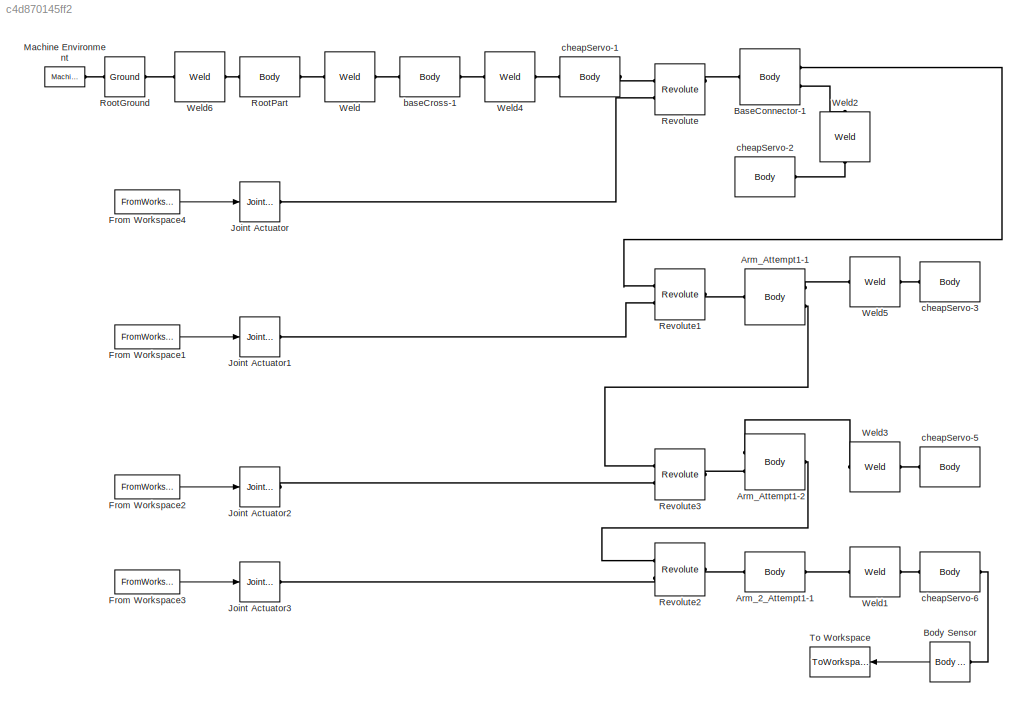
MODEL slx_c4d870145ff2
KIND model
BLOCK [Reference] Arm_2_Attempt1-1  REF=mblibv1/Bodies/Body
  AttachedToCS = CS1
  BodyColor = [0.79216 0.81961 0.93333]
  BodyColorSelMode = COLORPALETTE
  CG = Right$CG$[0.0802063 0.117359 0.26392]$WORLD$WORLD$m$[0 0 -1;0 1 0;1 0 0]$3x3 Transform$rad$WORLD$false$Arm_2_Attempt1-1::CG(AUTOGEN)
  CGPos = [0.0802063 0.117359 0.26392]
  CGRot = [0 0 -1;0 1 0;1 0 0]
  CS0Pos = []
  CS0Rot = []
  CS10Pos = []
  CS10Rot = []
  CS11Pos = []
  CS11Rot = []
  CS12Pos = []
  CS12Rot = []
  CS13Pos = []
  CS13Rot = []
  CS14Pos = []
  CS14Rot = []
  CS15Pos = []
  CS15Rot = []
  CS16Pos = []
  CS16Rot = []
  CS17Pos = []
  CS17Rot = []
  CS18Pos = []
  CS18Rot = []
  CS19Pos = []
  CS19Rot = []
  CS1Pos = [0.0387132 0.111386 0.303805]
  CS1Rot = [0 0 -1;0 1 0;1 0 0]
  CS20Pos = []
  CS20Rot = []
  CS2Pos = [0.0387132 0.111386 0.303805]
  CS2Rot = [1 0 0;0 1 0;0 0 1]
  CS3Pos = [0.0587132 0.117456 0.279]
  CS3Rot = [1 0 0;0 1 0;0 0 1]
  CS4Pos = []
  CS4Rot = []
  CS5Pos = []
  CS5Rot = []
  CS6Pos = []
  CS6Rot = []
  CS7Pos = []
  CS7Rot = []
  CS8Pos = []
  CS8Rot = []
  CS9Pos = []
  CS9Rot = []
  ClassName = Body
  Density = 1
  DensityUnits = kg/m^3
  DensityUse = false
  DialogClass = MechanicalBodyBlock
  GraphicsFileName = <userpath>\Dropbox\RBE501\RBE501_Arm_Simulink\Arm_new - Arm_2_Attempt1-1.STL
  GraphicsMode = GFXFILE
  Inertia = [1.93456e-06,-1.28538e-09,1.03955e-07;-1.28538e-09,2.88684e-06,-1.81312e-09;1.03955e-07,-1.81312e-09,1.07e-06]
  InertiaUnits = kg*m^2
  LConnTagsString = CS3
  Mass = 0.00482788
  MassUnits = kg
  PMImportedID = Arm_2_Attempt1-1
  Ports = [0, 0, 0, 0, 0, 1, 1]
  RConnTagsString = CS2
  Shape = Cylinder
  ShapeDims = [1 1]
  ShapeUnits = m
  ShapeUse = false
  SourceBlock = mblibv1/Bodies/Body
  SourceType = Body
  UpdateFromCAD = on
  WorkingFrames = Right$CS1$[0.0387132 0.111386 0.303805]$WORLD$WORLD$m$[0 0 -1;0 1 0;1 0 0]$3x3 Transform$rad$WORLD$false$Arm_2_Attempt1-1::CS1(AUTOGEN)#Right$CS2$[0.0387132 0.111386 0.303805]$WORLD$WORLD$m$[1 0 0;0 1 0;0 0 1]$3x3 Transform$rad$WORLD$true$Arm_2_Attempt1-1:-:cheapServo-6::Arm_2_Attempt1-1(AUTOGEN)#Left$CS3$[0.0587132 0.117456 0.279]$WORLD$WORLD$m$[1 0 0;0 1 0;0 0 1]$3x3 Transform$rad$WORLD$true$Arm...<+57ch>
BLOCK [Reference] Arm_Attempt1-1  REF=mblibv1/Bodies/Body
  AttachedToCS = CS1
  BodyColor = [0.79216 0.81961 0.93333]
  BodyColorSelMode = COLORPALETTE
  CG = Right$CG$[0.0109911 0.0413075 0.267024]$WORLD$WORLD$m$[0 -1 0;0 0 -1;1 0 0]$3x3 Transform$rad$WORLD$false$Arm_Attempt1-1::CG(AUTOGEN)
  CGPos = [0.0109911 0.0413075 0.267024]
  CGRot = [0 -1 0;0 0 -1;1 0 0]
  CS0Pos = []
  CS0Rot = []
  CS10Pos = []
  CS10Rot = []
  CS11Pos = []
  CS11Rot = []
  CS12Pos = []
  CS12Rot = []
  CS13Pos = []
  CS13Rot = []
  CS14Pos = []
  CS14Rot = []
  CS15Pos = []
  CS15Rot = []
  CS16Pos = []
  CS16Rot = []
  CS17Pos = []
  CS17Rot = []
  CS18Pos = []
  CS18Rot = []
  CS19Pos = []
  CS19Rot = []
  CS1Pos = [0.0169693 -0.00863884 0.305399]
  CS1Rot = [0 -1 0;0 0 -1;1 0 0]
  CS20Pos = []
  CS20Rot = []
  CS2Pos = [0.0108991 0.00236116 0.279]
  CS2Rot = [1 0 0;0 1 0;0 0 1]
  CS3Pos = [0.00496925 0.0753612 0.277464]
  CS3Rot = [1 0 0;0 1 0;0 0 1]
  CS4Pos = [0.0109693 0.0698112 0.279]
  CS4Rot = [1 0 0;0 1 0;0 0 1]
  CS5Pos = []
  CS5Rot = []
  CS6Pos = []
  CS6Rot = []
  CS7Pos = []
  CS7Rot = []
  CS8Pos = []
  CS8Rot = []
  CS9Pos = []
  CS9Rot = []
  ClassName = Body
  Density = 1
  DensityUnits = kg/m^3
  DensityUse = false
  DialogClass = MechanicalBodyBlock
  GraphicsFileName = <userpath>\Dropbox\RBE501\RBE501_Arm_Simulink\Arm_new - Arm_Attempt1-1.STL
  GraphicsMode = GFXFILE
  Inertia = [3.57587e-06,1.12045e-09,4.59326e-07;1.12045e-09,4.47292e-06,-5.09042e-09;4.59326e-07,-5.09042e-09,1.05685e-06]
  InertiaUnits = kg*m^2
  LConnTagsString = CS2
  Mass = 0.00663008
  MassUnits = kg
  PMImportedID = Arm_Attempt1-1
  Ports = [0, 0, 0, 0, 0, 1, 2]
  RConnTagsString = CS3|CS4
  Shape = Cylinder
  ShapeDims = [1 1]
  ShapeUnits = m
  ShapeUse = false
  SourceBlock = mblibv1/Bodies/Body
  SourceType = Body
  UpdateFromCAD = on
  WorkingFrames = Right$CS1$[0.0169693 -0.00863884 0.305399]$WORLD$WORLD$m$[0 -1 0;0 0 -1;1 0 0]$3x3 Transform$rad$WORLD$false$Arm_Attempt1-1::CS1(AUTOGEN)#Left$CS2$[0.0108991 0.00236116 0.279]$WORLD$WORLD$m$[1 0 0;0 1 0;0 0 1]$3x3 Transform$rad$WORLD$true$Arm_Attempt1-1:-:BaseConnector-1::Arm_Attempt1-1(AUTOGEN)#Right$CS3$[0.00496925 0.0753612 0.277464]$WORLD$WORLD$m$[1 0 0;0 1 0;0 0 1]$3x3 Transform$rad$WORLD$tru...<+214ch>
BLOCK [Reference] Arm_Attempt1-2  REF=mblibv1/Bodies/Body
  AttachedToCS = CS1
  BodyColor = [0.79216 0.81961 0.93333]
  BodyColorSelMode = COLORPALETTE
  CG = Right$CG$[0.0385735 0.0972853 0.267024]$WORLD$WORLD$m$[0 -0.707107 -0.707107;0 0.707107 -0.707107;1 0 0]$3x3 Transform$rad$WORLD$false$Arm_Attempt1-2::CG(AUTOGEN)
  CGPos = [0.0385735 0.0972853 0.267024]
  CGRot = [0 -0.707107 -0.707107;0 0.707107 -0.707107;1 0 0]
  CS0Pos = []
  CS0Rot = []
  CS10Pos = []
  CS10Rot = []
  CS11Pos = []
  CS11Rot = []
  CS12Pos = []
  CS12Rot = []
  CS13Pos = []
  CS13Rot = []
  CS14Pos = []
  CS14Rot = []
  CS15Pos = []
  CS15Rot = []
  CS16Pos = []
  CS16Rot = []
  CS17Pos = []
  CS17Rot = []
  CS18Pos = []
  CS18Rot = []
  CS19Pos = []
  CS19Rot = []
  CS1Pos = [0.00748332 0.0577407 0.305399]
  CS1Rot = [0 -0.707107 -0.707107;0 0.707107 -0.707107;1 0 0]
  CS20Pos = []
  CS20Rot = []
  CS2Pos = [0.0667389 0.117279 0.265014]
  CS2Rot = [1 0 0;0 1 0;0 0 1]
  CS3Pos = [0.0587132 0.117456 0.279]
  CS3Rot = [1 0 0;0 1 0;0 0 1]
  CS4Pos = [0.0109693 0.0698112 0.279]
  CS4Rot = [1 0 0;0 1 0;0 0 1]
  CS5Pos = []
  CS5Rot = []
  CS6Pos = []
  CS6Rot = []
  CS7Pos = []
  CS7Rot = []
  CS8Pos = []
  CS8Rot = []
  CS9Pos = []
  CS9Rot = []
  ClassName = Body
  Density = 1
  DensityUnits = kg/m^3
  DensityUse = false
  DialogClass = MechanicalBodyBlock
  GraphicsFileName = <userpath>\Dropbox\RBE501\RBE501_Arm_Simulink\Arm_new - Arm_Attempt1-2.STL
  GraphicsMode = GFXFILE
  Inertia = [3.57587e-06,1.12045e-09,4.59326e-07;1.12045e-09,4.47292e-06,-5.09042e-09;4.59326e-07,-5.09042e-09,1.05685e-06]
  InertiaUnits = kg*m^2
  LConnTagsString = CS2|CS4
  Mass = 0.00663008
  MassUnits = kg
  PMImportedID = Arm_Attempt1-2
  Ports = [0, 0, 0, 0, 0, 2, 1]
  RConnTagsString = CS3
  Shape = Cylinder
  ShapeDims = [1 1]
  ShapeUnits = m
  ShapeUse = false
  SourceBlock = mblibv1/Bodies/Body
  SourceType = Body
  UpdateFromCAD = on
  WorkingFrames = Right$CS1$[0.00748332 0.0577407 0.305399]$WORLD$WORLD$m$[0 -0.707107 -0.707107;0 0.707107 -0.707107;1 0 0]$3x3 Transform$rad$WORLD$false$Arm_Attempt1-2::CS1(AUTOGEN)#Left$CS2$[0.0667389 0.117279 0.265014]$WORLD$WORLD$m$[1 0 0;0 1 0;0 0 1]$3x3 Transform$rad$WORLD$true$Arm_Attempt1-2:-:cheapServo-5::Arm_Attempt1-2(AUTOGEN)#Right$CS3$[0.0587132 0.117456 0.279]$WORLD$WORLD$m$[1 0 0;0 1 0;0 0 1]$3x3 Tr...<+238ch>
BLOCK [Reference] BaseConnector-1  REF=mblibv1/Bodies/Body
  AttachedToCS = CS1
  BodyColor = [1 1 1]
  BodyColorSelMode = COLORPALETTE
  CG = Right$CG$[0.00564211 -0.00116004 0.271229]$WORLD$WORLD$m$[1 0 0;0 1 0;0 0 1]$3x3 Transform$rad$WORLD$false$BaseConnector-1::CG(AUTOGEN)
  CGPos = [0.00564211 -0.00116004 0.271229]
  CGRot = [1 0 0;0 1 0;0 0 1]
  CS0Pos = []
  CS0Rot = []
  CS10Pos = []
  CS10Rot = []
  CS11Pos = []
  CS11Rot = []
  CS12Pos = []
  CS12Rot = []
  CS13Pos = []
  CS13Rot = []
  CS14Pos = []
  CS14Rot = []
  CS15Pos = []
  CS15Rot = []
  CS16Pos = []
  CS16Rot = []
  CS17Pos = []
  CS17Rot = []
  CS18Pos = []
  CS18Rot = []
  CS19Pos = []
  CS19Rot = []
  CS1Pos = [0.00554911 -0.00353884 0.2601]
  CS1Rot = [1 0 0;0 1 0;0 0 1]
  CS20Pos = []
  CS20Rot = []
  CS2Pos = [0.00554911 -0.00353884 0.27]
  CS2Rot = [1 0 0;0 1 0;0 0 1]
  CS3Pos = [0.0108991 0.00236116 0.279]
  CS3Rot = [1 0 0;0 1 0;0 0 1]
  CS4Pos = [0.00554911 -0.00353884 0.2601]
  CS4Rot = [1 0 0;0 1 0;0 0 1]
  CS5Pos = []
  CS5Rot = []
  CS6Pos = []
  CS6Rot = []
  CS7Pos = []
  CS7Rot = []
  CS8Pos = []
  CS8Rot = []
  CS9Pos = []
  CS9Rot = []
  ClassName = Body
  Density = 1
  DensityUnits = kg/m^3
  DensityUse = false
  DialogClass = MechanicalBodyBlock
  GraphicsFileName = <userpath>\Dropbox\RBE501\RBE501_Arm_Simulink\Arm_new - BaseConnector-1.STL
  GraphicsMode = GFXFILE
  Inertia = [1.81369e-07,-9.46923e-10,-2.62761e-09;-9.46923e-10,3.3813e-07,-2.11475e-08;-2.62761e-09,-2.11475e-08,2.75643e-07]
  InertiaUnits = kg*m^2
  LConnTagsString = CS2
  Mass = 0.00289161
  MassUnits = kg
  PMImportedID = BaseConnector-1
  Ports = [0, 0, 0, 0, 0, 1, 2]
  RConnTagsString = CS3|CS4
  Shape = Cylinder
  ShapeDims = [1 1]
  ShapeUnits = m
  ShapeUse = false
  SourceBlock = mblibv1/Bodies/Body
  SourceType = Body
  UpdateFromCAD = on
  WorkingFrames = Right$CS1$[0.00554911 -0.00353884 0.2601]$WORLD$WORLD$m$[1 0 0;0 1 0;0 0 1]$3x3 Transform$rad$WORLD$false$BaseConnector-1::CS1(AUTOGEN)#Left$CS2$[0.00554911 -0.00353884 0.27]$WORLD$WORLD$m$[1 0 0;0 1 0;0 0 1]$3x3 Transform$rad$WORLD$true$BaseConnector-1:-:cheapServo-1::BaseConnector-1(AUTOGEN)#Right$CS3$[0.0108991 0.00236116 0.279]$WORLD$WORLD$m$[1 0 0;0 1 0;0 0 1]$3x3 Transform$rad$WORLD$true$Arm...<+217ch>
BLOCK [Reference] Body Sensor  REF=mblibv1/Sensors & 
Actuators/Body Sensor
  Acceleration = off
  AccelerationUnits = m/s^2
  ActiveIO = on
  Angle = on
  AngleUnits = deg
  ArcAcceleration = off
  ArcAccelerationUnits = deg/s^2
  ArcVelocity = off
  ArcVelocityUnits = deg/s
  ClassName = BodySensor
  CoordPosition = on
  CoordPositionUnits = m
  DialogClass = MechanicalSensorBlock
  Muxed = on
  OutputVector = [1]
  PhysicalDomain = Mechanical
  PortType = blob
  Ports = [0, 1, 0, 0, 0, 1]
  Pose = off
  Quaternion = on
  QuaternionDDT = off
  QuaternionDT = off
  QuaternionUnits = off
  ReferenceFrame = Absolute (World)
  SourceBlock = mblibv1/Sensors & \nActuators/Body Sensor
  SourceType = Body Sensor
  UpdateFromCAD = off
  Velocity = off
  VelocityUnits = m/s
  Width = 3
BLOCK [FromWorkspace] From Workspace1
  SampleTime = 0
  VariableName = J2b
  ZeroCross = on
BLOCK [FromWorkspace] From Workspace2
  SampleTime = 0
  VariableName = J3b
  ZeroCross = on
BLOCK [FromWorkspace] From Workspace3
  SampleTime = 0
  VariableName = J4b
  ZeroCross = on
BLOCK [FromWorkspace] From Workspace4
  SampleTime = 0
  VariableName = J1b
  ZeroCross = on
BLOCK [Reference] Joint Actuator  REF=mblibv1/Sensors & 
Actuators/Joint Actuator
  AccelerationUnits = m/s^2
  ActiveIO = on
  ActuationStyle = Motion
  AngleUnits = rad
  ArcAccelerationUnits = rad/s^2
  ArcVelocityUnits = rad/s
  ClassName = JointActuator
  CoordPositionUnits = m
  DialogClass = MechanicalActuatorBlock
  ForceUnits = N
  PhysicalDomain = Mechanical
  PortType = blob
  Ports = [1, 0, 0, 0, 0, 0, 1]
  Primitive = R1
  ReferenceFrame = Absolute (World)
  SourceBlock = mblibv1/Sensors & \nActuators/Joint Actuator
  SourceType = Joint Actuator
  TorqueUnits = N*m
  UpdateFromCAD = off
  VelocityUnits = m/s
  Width = 3
BLOCK [Reference] Joint Actuator1  REF=mblibv1/Sensors & 
Actuators/Joint Actuator
  AccelerationUnits = m/s^2
  ActiveIO = on
  ActuationStyle = Motion
  AngleUnits = rad
  ArcAccelerationUnits = rad/s^2
  ArcVelocityUnits = rad/s
  ClassName = JointActuator
  CoordPositionUnits = m
  DialogClass = MechanicalActuatorBlock
  ForceUnits = N
  PhysicalDomain = Mechanical
  PortType = blob
  Ports = [1, 0, 0, 0, 0, 0, 1]
  Primitive = R1
  ReferenceFrame = Absolute (World)
  SourceBlock = mblibv1/Sensors & \nActuators/Joint Actuator
  SourceType = Joint Actuator
  TorqueUnits = N*m
  UpdateFromCAD = off
  VelocityUnits = m/s
  Width = 3
BLOCK [Reference] Joint Actuator2  REF=mblibv1/Sensors & 
Actuators/Joint Actuator
  AccelerationUnits = m/s^2
  ActiveIO = on
  ActuationStyle = Motion
  AngleUnits = rad
  ArcAccelerationUnits = rad/s^2
  ArcVelocityUnits = rad/s
  ClassName = JointActuator
  CoordPositionUnits = m
  DialogClass = MechanicalActuatorBlock
  ForceUnits = N
  PhysicalDomain = Mechanical
  PortType = blob
  Ports = [1, 0, 0, 0, 0, 0, 1]
  Primitive = R1
  ReferenceFrame = Absolute (World)
  SourceBlock = mblibv1/Sensors & \nActuators/Joint Actuator
  SourceType = Joint Actuator
  TorqueUnits = N*m
  UpdateFromCAD = off
  VelocityUnits = m/s
  Width = 3
BLOCK [Reference] Joint Actuator3  REF=mblibv1/Sensors & 
Actuators/Joint Actuator
  AccelerationUnits = m/s^2
  ActiveIO = on
  ActuationStyle = Motion
  AngleUnits = rad
  ArcAccelerationUnits = rad/s^2
  ArcVelocityUnits = rad/s
  ClassName = JointActuator
  CoordPositionUnits = m
  DialogClass = MechanicalActuatorBlock
  ForceUnits = N
  PhysicalDomain = Mechanical
  PortType = blob
  Ports = [1, 0, 0, 0, 0, 0, 1]
  Primitive = R1
  ReferenceFrame = Absolute (World)
  SourceBlock = mblibv1/Sensors & \nActuators/Joint Actuator
  SourceType = Joint Actuator
  TorqueUnits = N*m
  UpdateFromCAD = off
  VelocityUnits = m/s
  Width = 3
BLOCK [Reference] Machine Environment  REF=mblibv1/Bodies/Machine
Environment
  AnalysisType = Forward dynamics
  AngularAssemblyTolerance = 1e-3
  AngularAssemblyToleranceUnits = rad
  BodyColorSelMode = Use model default
  BodyVisualizationType = Use model default body geometries
  ClassName = Environment
  ConstraintAbsTolerance = 1e-4
  ConstraintRelTolerance = 1e-4
  ConstraintSolverType = Stabilizing
  DefaultBodyColor = [1 0 0]
  DialogTemplateClass = MECH.MachineEnvironment
  Dimensionality = Auto-detect
  Gravity = [0 -9.81 0]
  GravityAsSignal = off
  GravityUnits = m/s^2
  LinearAssemblyTolerance = 1e-3
  LinearAssemblyToleranceUnits = m
  PerturbationSize = 1e-5
  PhysicalDomain = Mechanical
  PortType = env
  Ports = [0, 0, 0, 0, 0, 0, 1]
  RedundancyAnalysisTolerance = 1e-14
  RedundancyAnalysisToleranceType = Automatically select tolerance
  SourceBlock = mblibv1/Bodies/Machine\nEnvironment
  SourceType = Machine Environment
  StatePerturbationType = Fixed
  SyncWhenCopied = off
  UseRobustSingularityHandling = off
  VisualizeMachine = on
BLOCK [Reference] Revolute  REF=mblibv1/Joints/Revolute
  ClassName = Joint
  CutJoint = off
  DialogClass = JointBlock
  LConnTagsString = __newl0|SA1
  MarkAsCut = off
  NumSAPorts = 2
  PMImportedID = BaseConnector-1:-:cheapServo-1
  Ports = [0, 0, 0, 0, 0, 2, 2]
  PrimitiveProps = R1$World$[0,1,0]$revolute
  Primitives = prismatic
  R1Axis = [0,1,0]
  RConnTagsString = __newr0|SA1
  SourceBlock = mblibv1/Joints/Revolute
  SourceType = Revolute
  UpdateFromCAD = on
BLOCK [Reference] Revolute1  REF=mblibv1/Joints/Revolute
  ClassName = Joint
  CutJoint = off
  DialogClass = JointBlock
  LConnTagsString = __newl0|SA1
  MarkAsCut = off
  NumSAPorts = 1
  PMImportedID = Arm_Attempt1-1:-:BaseConnector-1
  Ports = [0, 0, 0, 0, 0, 2, 1]
  PrimitiveProps = R1$World$[0,0,-1]$revolute
  Primitives = prismatic
  R1Axis = [0,0,-1]
  RConnTagsString = __newr0
  SourceBlock = mblibv1/Joints/Revolute
  SourceType = Revolute
  UpdateFromCAD = on
BLOCK [Reference] Revolute2  REF=mblibv1/Joints/Revolute
  ClassName = Joint
  CutJoint = off
  DialogClass = JointBlock
  LConnTagsString = __newl0|SA1
  MarkAsCut = off
  NumSAPorts = 1
  PMImportedID = Arm_2_Attempt1-1:-:Arm_Attempt1-2
  Ports = [0, 0, 0, 0, 0, 2, 1]
  PrimitiveProps = R1$World$[0,0,-1]$revolute
  Primitives = prismatic
  R1Axis = [0,0,-1]
  RConnTagsString = __newr0
  SourceBlock = mblibv1/Joints/Revolute
  SourceType = Revolute
  UpdateFromCAD = on
BLOCK [Reference] Revolute3  REF=mblibv1/Joints/Revolute
  ClassName = Joint
  CutJoint = off
  DialogClass = JointBlock
  LConnTagsString = __newl0|SA1
  MarkAsCut = off
  NumSAPorts = 1
  PMImportedID = Arm_Attempt1-1:-:Arm_Attempt1-2
  Ports = [0, 0, 0, 0, 0, 2, 1]
  PrimitiveProps = R1$World$[0,0,-1]$revolute
  Primitives = prismatic
  R1Axis = [0,0,-1]
  RConnTagsString = __newr0
  SourceBlock = mblibv1/Joints/Revolute
  SourceType = Revolute
  UpdateFromCAD = on
BLOCK [Reference] RootGround  REF=mblibv1/Bodies/Ground
  ClassName = Ground
  CoordPosition = [0.024952,0.026403,0.267905]
  CoordPositionUnits = m
  DialogClass = GroundBlock
  LeftPortType = env
  MachineId = [1 0]
  PMImportedID = RootGround
  ParameterChecksum = [2908134062, 1424125670, 3001692232, 2128100094]
  PhysicalDomain = Mechanical
  Ports = [0, 0, 0, 0, 0, 1, 1]
  RightPortType = workingframe
  ShowEnvPort = on
  SourceBlock = mblibv1/Bodies/Ground
  SourceType = Ground
  StateVectorMgrId = 0
  TopologyChecksum = [1055976678, 3123424255, 1913935668, 1490394752]
  UpdateFromCAD = on
  UserDataPersistent = on
BLOCK [Reference] RootPart  REF=mblibv1/Bodies/Body
  AttachedToCS = CS1
  BodyColor = [1;0;0]
  BodyColorSelMode = MACHINE_DEFAULT
  CG = Right$CG$[0.024952 0.026403 0.267905]$WORLD$WORLD$m$[1 0 0;0 1 0;0 0 1]$3x3 Transform$rad$WORLD$false$Arm_new/RootPart::CG(AUTOGEN)
  CGPos = [0.024952 0.026403 0.267905]
  CGRot = [1 0 0;0 1 0;0 0 1]
  CS0Pos = []
  CS0Rot = []
  CS10Pos = []
  CS10Rot = []
  CS11Pos = []
  CS11Rot = []
  CS12Pos = []
  CS12Rot = []
  CS13Pos = []
  CS13Rot = []
  CS14Pos = []
  CS14Rot = []
  CS15Pos = []
  CS15Rot = []
  CS16Pos = []
  CS16Rot = []
  CS17Pos = []
  CS17Rot = []
  CS18Pos = []
  CS18Rot = []
  CS19Pos = []
  CS19Rot = []
  CS1Pos = [0 0 0]
  CS1Rot = [1 0 0;0 1 0;0 0 1]
  CS20Pos = []
  CS20Rot = []
  CS2Pos = [0.00554913 -0.0339934 0.27051]
  CS2Rot = [1 0 0;0 1 0;0 0 1]
  CS3Pos = [0.024952 0.026403 0.267905]
  CS3Rot = [1 0 0;0 1 0;0 0 1]
  CS4Pos = []
  CS4Rot = []
  CS5Pos = []
  CS5Rot = []
  CS6Pos = []
  CS6Rot = []
  CS7Pos = []
  CS7Rot = []
  CS8Pos = []
  CS8Rot = []
  CS9Pos = []
  CS9Rot = []
  ClassName = Body
  Density = 1
  DensityUnits = kg/m^3
  DensityUse = false
  DialogClass = MechanicalBodyBlock
  GraphicsMode = MACHINE_DEFAULT
  Inertia = [0,0,0;0,0,0;0,0,0]
  InertiaUnits = kg*m^2
  LConnTagsString = CS3
  Mass = 0
  MassUnits = kg
  PMImportedID = Arm_new/RootPart
  Ports = [0, 0, 0, 0, 0, 1, 1]
  RConnTagsString = CS2
  Shape = Cylinder
  ShapeDims = [1 1]
  ShapeUnits = m
  ShapeUse = false
  SourceBlock = mblibv1/Bodies/Body
  SourceType = Body
  UpdateFromCAD = on
  WorkingFrames = Right$CS1$[0 0 0]$WORLD$WORLD$m$[1 0 0;0 1 0;0 0 1]$3x3 Transform$rad$WORLD$false$Arm_new/RootPart::CS1(AUTOGEN)#Right$CS2$[0.00554913 -0.0339934 0.27051]$WORLD$WORLD$m$[1 0 0;0 1 0;0 0 1]$3x3 Transform$rad$WORLD$true$Arm_new/RootPart:-:baseCross-1::Arm_new/RootPart(AUTOGEN)#Left$CS3$[0.024952 0.026403 0.267905]$WORLD$WORLD$m$[1 0 0;0 1 0;0 0 1]$3x3 Transform$rad$WORLD$true$Arm_new/RootPart:-:Root...<+33ch>
BLOCK [ToWorkspace] To Workspace
  FixptAsFi = on
  MaxDataPoints = inf
  Ports = [1]
  SampleTime = -1
  Save2DSignal = 3-D array (concatenate along third dimension)
  SaveFormat = Timeseries
  VariableName = Pee_spiral
BLOCK [Reference] Weld  REF=mblibv1/Joints/Weld
  ClassName = Joint
  CutJoint = off
  DialogClass = JointBlock
  LConnTagsString = __newl0
  MarkAsCut = off
  NumSAPorts = 0
  PMImportedID = Arm_new/RootPart:-:baseCross-1
  Ports = [0, 0, 0, 0, 0, 1, 1]
  PrimitiveProps = W$WORLD$[0.57735,0.57735,0.57735]$weld
  Primitives = weld
  RConnTagsString = __newr0
  SourceBlock = mblibv1/Joints/Weld
  SourceType = Weld
  UpdateFromCAD = on
  WAxis = [0.57735,0.57735,0.57735]
BLOCK [Reference] Weld1  REF=mblibv1/Joints/Weld
  ClassName = Joint
  CutJoint = off
  DialogClass = JointBlock
  LConnTagsString = __newl0
  MarkAsCut = off
  NumSAPorts = 0
  PMImportedID = Arm_2_Attempt1-1:-:cheapServo-6
  Ports = [0, 0, 0, 0, 0, 1, 1]
  PrimitiveProps = W$WORLD$[0.57735,0.57735,0.57735]$weld
  Primitives = weld
  RConnTagsString = __newr0
  SourceBlock = mblibv1/Joints/Weld
  SourceType = Weld
  UpdateFromCAD = on
  WAxis = [0.57735,0.57735,0.57735]
BLOCK [Reference] Weld2  REF=mblibv1/Joints/Weld
  ClassName = Joint
  CutJoint = off
  DialogClass = JointBlock
  LConnTagsString = __newl0
  MarkAsCut = off
  NumSAPorts = 0
  PMImportedID = BaseConnector-1:-:cheapServo-2
  Ports = [0, 0, 0, 0, 0, 1, 1]
  PrimitiveProps = W$WORLD$[0.57735,0.57735,0.57735]$weld
  Primitives = weld
  RConnTagsString = __newr0
  SourceBlock = mblibv1/Joints/Weld
  SourceType = Weld
  UpdateFromCAD = on
  WAxis = [0.57735,0.57735,0.57735]
BLOCK [Reference] Weld3  REF=mblibv1/Joints/Weld
  ClassName = Joint
  CutJoint = off
  DialogClass = JointBlock
  LConnTagsString = __newl0
  MarkAsCut = off
  NumSAPorts = 0
  PMImportedID = Arm_Attempt1-2:-:cheapServo-5
  Ports = [0, 0, 0, 0, 0, 1, 1]
  PrimitiveProps = W$WORLD$[0.57735,0.57735,0.57735]$weld
  Primitives = weld
  RConnTagsString = __newr0
  SourceBlock = mblibv1/Joints/Weld
  SourceType = Weld
  UpdateFromCAD = on
  WAxis = [0.57735,0.57735,0.57735]
BLOCK [Reference] Weld4  REF=mblibv1/Joints/Weld
  ClassName = Joint
  CutJoint = off
  DialogClass = JointBlock
  LConnTagsString = __newl0
  MarkAsCut = off
  NumSAPorts = 0
  PMImportedID = baseCross-1:-:cheapServo-1
  Ports = [0, 0, 0, 0, 0, 1, 1]
  PrimitiveProps = W$WORLD$[0.57735,0.57735,0.57735]$weld
  Primitives = weld
  RConnTagsString = __newr0
  SourceBlock = mblibv1/Joints/Weld
  SourceType = Weld
  UpdateFromCAD = on
  WAxis = [0.57735,0.57735,0.57735]
BLOCK [Reference] Weld5  REF=mblibv1/Joints/Weld
  ClassName = Joint
  CutJoint = off
  DialogClass = JointBlock
  LConnTagsString = __newl0
  MarkAsCut = off
  NumSAPorts = 0
  PMImportedID = Arm_Attempt1-1:-:cheapServo-3
  Ports = [0, 0, 0, 0, 0, 1, 1]
  PrimitiveProps = W$WORLD$[0.57735,0.57735,0.57735]$weld
  Primitives = weld
  RConnTagsString = __newr0
  SourceBlock = mblibv1/Joints/Weld
  SourceType = Weld
  UpdateFromCAD = on
  WAxis = [0.57735,0.57735,0.57735]
BLOCK [Reference] Weld6  REF=mblibv1/Joints/Weld
  ClassName = Joint
  CutJoint = off
  DialogClass = JointBlock
  LConnTagsString = __newl0
  MarkAsCut = off
  NumSAPorts = 0
  PMImportedID = Arm_new/RootPart:-:RootGround
  Ports = [0, 0, 0, 0, 0, 1, 1]
  PrimitiveProps = W$WORLD$[0.57735,0.57735,0.57735]$weld
  Primitives = weld
  RConnTagsString = __newr0
  SourceBlock = mblibv1/Joints/Weld
  SourceType = Weld
  UpdateFromCAD = on
  WAxis = [0.57735,0.57735,0.57735]
BLOCK [Reference] baseCross-1  REF=mblibv1/Bodies/Body
  AttachedToCS = CS1
  BodyColor = [1 1 1]
  BodyColorSelMode = COLORPALETTE
  CG = Right$CG$[0.00554913 -0.0339934 0.27051]$WORLD$WORLD$m$[1 0 0;0 1 0;0 0 1]$3x3 Transform$rad$WORLD$false$baseCross-1::CG(AUTOGEN)
  CGPos = [0.00554913 -0.0339934 0.27051]
  CGRot = [1 0 0;0 1 0;0 0 1]
  CS0Pos = []
  CS0Rot = []
  CS10Pos = []
  CS10Rot = []
  CS11Pos = []
  CS11Rot = []
  CS12Pos = []
  CS12Rot = []
  CS13Pos = []
  CS13Rot = []
  CS14Pos = []
  CS14Rot = []
  CS15Pos = []
  CS15Rot = []
  CS16Pos = []
  CS16Rot = []
  CS17Pos = []
  CS17Rot = []
  CS18Pos = []
  CS18Rot = []
  CS19Pos = []
  CS19Rot = []
  CS1Pos = [0.00554911 -0.0334388 0.27]
  CS1Rot = [1 0 0;0 1 0;0 0 1]
  CS20Pos = []
  CS20Rot = []
  CS2Pos = [0.00554913 -0.0339934 0.27051]
  CS2Rot = [1 0 0;0 1 0;0 0 1]
  CS3Pos = [-0.000350892 -0.0175388 0.27]
  CS3Rot = [1 0 0;0 1 0;0 0 1]
  CS4Pos = []
  CS4Rot = []
  CS5Pos = []
  CS5Rot = []
  CS6Pos = []
  CS6Rot = []
  CS7Pos = []
  CS7Rot = []
  CS8Pos = []
  CS8Rot = []
  CS9Pos = []
  CS9Rot = []
  ClassName = Body
  Density = 1
  DensityUnits = kg/m^3
  DensityUse = false
  DialogClass = MechanicalBodyBlock
  GraphicsFileName = <userpath>\Dropbox\RBE501\RBE501_Arm_Simulink\Arm_new - baseCross-1.STL
  GraphicsMode = GFXFILE
  Inertia = [9.50419e-05,-4.72341e-14,1.07796e-10;-4.72341e-14,0.000189164,-1.55231e-07;1.07796e-10,-1.55231e-07,9.48987e-05]
  InertiaUnits = kg*m^2
  LConnTagsString = CS2
  Mass = 0.0338588
  MassUnits = kg
  PMImportedID = baseCross-1
  Ports = [0, 0, 0, 0, 0, 1, 1]
  RConnTagsString = CS3
  Shape = Cylinder
  ShapeDims = [1 1]
  ShapeUnits = m
  ShapeUse = false
  SourceBlock = mblibv1/Bodies/Body
  SourceType = Body
  UpdateFromCAD = on
  WorkingFrames = Right$CS1$[0.00554911 -0.0334388 0.27]$WORLD$WORLD$m$[1 0 0;0 1 0;0 0 1]$3x3 Transform$rad$WORLD$false$baseCross-1::CS1(AUTOGEN)#Left$CS2$[0.00554913 -0.0339934 0.27051]$WORLD$WORLD$m$[1 0 0;0 1 0;0 0 1]$3x3 Transform$rad$WORLD$true$Arm_new/RootPart:-:baseCross-1::baseCross-1(AUTOGEN)#Right$CS3$[-0.000350892 -0.0175388 0.27]$WORLD$WORLD$m$[1 0 0;0 1 0;0 0 1]$3x3 Transform$rad$WORLD$true$baseCross-...<+38ch>
BLOCK [Reference] cheapServo-1  REF=mblibv1/Bodies/Body
  AttachedToCS = CS1
  BodyColor = [0.49412 0.49412 0.49412]
  BodyColorSelMode = COLORPALETTE
  CG = Right$CG$[0.00554911 -0.0206986 0.275011]$WORLD$WORLD$m$[0 0 -1;0 1 0;1 0 0]$3x3 Transform$rad$WORLD$false$cheapServo-1::CG(AUTOGEN)
  CGPos = [0.00554911 -0.0206986 0.275011]
  CGRot = [0 0 -1;0 1 0;1 0 0]
  CS0Pos = []
  CS0Rot = []
  CS10Pos = []
  CS10Rot = []
  CS11Pos = []
  CS11Rot = []
  CS12Pos = []
  CS12Rot = []
  CS13Pos = []
  CS13Rot = []
  CS14Pos = []
  CS14Rot = []
  CS15Pos = []
  CS15Rot = []
  CS16Pos = []
  CS16Rot = []
  CS17Pos = []
  CS17Rot = []
  CS18Pos = []
  CS18Rot = []
  CS19Pos = []
  CS19Rot = []
  CS1Pos = [0.00554911 -0.0220888 0.27535]
  CS1Rot = [0 0 -1;0 1 0;1 0 0]
  CS20Pos = []
  CS20Rot = []
  CS2Pos = [0.00554911 -0.00353884 0.27]
  CS2Rot = [1 0 0;0 1 0;0 0 1]
  CS3Pos = [-0.000350892 -0.0175388 0.27]
  CS3Rot = [1 0 0;0 1 0;0 0 1]
  CS4Pos = []
  CS4Rot = []
  CS5Pos = []
  CS5Rot = []
  CS6Pos = []
  CS6Rot = []
  CS7Pos = []
  CS7Rot = []
  CS8Pos = []
  CS8Rot = []
  CS9Pos = []
  CS9Rot = []
  ClassName = Body
  Density = 1
  DensityUnits = kg/m^3
  DensityUse = false
  DialogClass = MechanicalBodyBlock
  GraphicsFileName = <userpath>\Dropbox\RBE501\RBE501_Arm_Simulink\Arm_new - cheapServo-1.STL
  GraphicsMode = GFXFILE
  Inertia = [4.96531e-07,3.23519e-08,0;3.23519e-08,4.44048e-07,0;0,0,7.67618e-07]
  InertiaUnits = kg*m^2
  LConnTagsString = CS3
  Mass = 0.00769542
  MassUnits = kg
  PMImportedID = cheapServo-1
  Ports = [0, 0, 0, 0, 0, 1, 1]
  RConnTagsString = CS2
  Shape = Cylinder
  ShapeDims = [1 1]
  ShapeUnits = m
  ShapeUse = false
  SourceBlock = mblibv1/Bodies/Body
  SourceType = Body
  UpdateFromCAD = on
  WorkingFrames = Right$CS1$[0.00554911 -0.0220888 0.27535]$WORLD$WORLD$m$[0 0 -1;0 1 0;1 0 0]$3x3 Transform$rad$WORLD$false$cheapServo-1::CS1(AUTOGEN)#Right$CS2$[0.00554911 -0.00353884 0.27]$WORLD$WORLD$m$[1 0 0;0 1 0;0 0 1]$3x3 Transform$rad$WORLD$true$BaseConnector-1:-:cheapServo-1::cheapServo-1(AUTOGEN)#Left$CS3$[-0.000350892 -0.0175388 0.27]$WORLD$WORLD$m$[1 0 0;0 1 0;0 0 1]$3x3 Transform$rad$WORLD$true$baseCr...<+43ch>
BLOCK [Reference] cheapServo-2  REF=mblibv1/Bodies/Body
  AttachedToCS = CS1
  BodyColor = [0.49412 0.49412 0.49412]
  BodyColorSelMode = COLORPALETTE
  CG = Right$CG$[0.00588816 0.00236116 0.26326]$WORLD$WORLD$m$[-1 0 0;0 0 -1;0 -1 0]$3x3 Transform$rad$WORLD$false$cheapServo-2::CG(AUTOGEN)
  CGPos = [0.00588816 0.00236116 0.26326]
  CGRot = [-1 0 0;0 0 -1;0 -1 0]
  CS0Pos = []
  CS0Rot = []
  CS10Pos = []
  CS10Rot = []
  CS11Pos = []
  CS11Rot = []
  CS12Pos = []
  CS12Rot = []
  CS13Pos = []
  CS13Rot = []
  CS14Pos = []
  CS14Rot = []
  CS15Pos = []
  CS15Rot = []
  CS16Pos = []
  CS16Rot = []
  CS17Pos = []
  CS17Rot = []
  CS18Pos = []
  CS18Rot = []
  CS19Pos = []
  CS19Rot = []
  CS1Pos = [0.00554911 0.00236116 0.26465]
  CS1Rot = [-1 0 0;0 0 -1;0 -1 0]
  CS20Pos = []
  CS20Rot = []
  CS2Pos = [0.00554911 -0.00353884 0.2601]
  CS2Rot = [1 0 0;0 1 0;0 0 1]
  CS3Pos = []
  CS3Rot = []
  CS4Pos = []
  CS4Rot = []
  CS5Pos = []
  CS5Rot = []
  CS6Pos = []
  CS6Rot = []
  CS7Pos = []
  CS7Rot = []
  CS8Pos = []
  CS8Rot = []
  CS9Pos = []
  CS9Rot = []
  ClassName = Body
  Density = 1
  DensityUnits = kg/m^3
  DensityUse = false
  DialogClass = MechanicalBodyBlock
  GraphicsFileName = <userpath>\Dropbox\RBE501\RBE501_Arm_Simulink\Arm_new - cheapServo-2.STL
  GraphicsMode = GFXFILE
  Inertia = [4.96531e-07,3.23519e-08,0;3.23519e-08,4.44048e-07,0;0,0,7.67618e-07]
  InertiaUnits = kg*m^2
  LConnTagsString = CS2
  Mass = 0.00769542
  MassUnits = kg
  PMImportedID = cheapServo-2
  Ports = [0, 0, 0, 0, 0, 1]
  Shape = Cylinder
  ShapeDims = [1 1]
  ShapeUnits = m
  ShapeUse = false
  SourceBlock = mblibv1/Bodies/Body
  SourceType = Body
  UpdateFromCAD = on
  WorkingFrames = Right$CS1$[0.00554911 0.00236116 0.26465]$WORLD$WORLD$m$[-1 0 0;0 0 -1;0 -1 0]$3x3 Transform$rad$WORLD$false$cheapServo-2::CS1(AUTOGEN)#Left$CS2$[0.00554911 -0.00353884 0.2601]$WORLD$WORLD$m$[1 0 0;0 1 0;0 0 1]$3x3 Transform$rad$WORLD$true$BaseConnector-1:-:cheapServo-2::cheapServo-2(AUTOGEN)
BLOCK [Reference] cheapServo-3  REF=mblibv1/Bodies/Body
  AttachedToCS = CS1
  BodyColor = [0.49412 0.49412 0.49412]
  BodyColorSelMode = COLORPALETTE
  CG = Right$CG$[0.0108693 0.0644502 0.263624]$WORLD$WORLD$m$[0 0 1;-1 0 0;0 -1 0]$3x3 Transform$rad$WORLD$false$cheapServo-3::CG(AUTOGEN)
  CGPos = [0.0108693 0.0644502 0.263624]
  CGRot = [0 0 1;-1 0 0;0 -1 0]
  CS0Pos = []
  CS0Rot = []
  CS10Pos = []
  CS10Rot = []
  CS11Pos = []
  CS11Rot = []
  CS12Pos = []
  CS12Rot = []
  CS13Pos = []
  CS13Rot = []
  CS14Pos = []
  CS14Rot = []
  CS15Pos = []
  CS15Rot = []
  CS16Pos = []
  CS16Rot = []
  CS17Pos = []
  CS17Rot = []
  CS18Pos = []
  CS18Rot = []
  CS19Pos = []
  CS19Rot = []
  CS1Pos = [0.0108693 0.0641112 0.265014]
  CS1Rot = [0 0 1;-1 0 0;0 -1 0]
  CS20Pos = []
  CS20Rot = []
  CS2Pos = [0.00496925 0.0753612 0.277464]
  CS2Rot = [1 0 0;0 1 0;0 0 1]
  CS3Pos = []
  CS3Rot = []
  CS4Pos = []
  CS4Rot = []
  CS5Pos = []
  CS5Rot = []
  CS6Pos = []
  CS6Rot = []
  CS7Pos = []
  CS7Rot = []
  CS8Pos = []
  CS8Rot = []
  CS9Pos = []
  CS9Rot = []
  ClassName = Body
  Density = 1
  DensityUnits = kg/m^3
  DensityUse = false
  DialogClass = MechanicalBodyBlock
  GraphicsFileName = <userpath>\Dropbox\RBE501\RBE501_Arm_Simulink\Arm_new - cheapServo-3.STL
  GraphicsMode = GFXFILE
  Inertia = [4.96531e-07,3.23519e-08,0;3.23519e-08,4.44048e-07,0;0,0,7.67618e-07]
  InertiaUnits = kg*m^2
  LConnTagsString = CS2
  Mass = 0.00769542
  MassUnits = kg
  PMImportedID = cheapServo-3
  Ports = [0, 0, 0, 0, 0, 1]
  Shape = Cylinder
  ShapeDims = [1 1]
  ShapeUnits = m
  ShapeUse = false
  SourceBlock = mblibv1/Bodies/Body
  SourceType = Body
  UpdateFromCAD = on
  WorkingFrames = Right$CS1$[0.0108693 0.0641112 0.265014]$WORLD$WORLD$m$[0 0 1;-1 0 0;0 -1 0]$3x3 Transform$rad$WORLD$false$cheapServo-3::CS1(AUTOGEN)#Left$CS2$[0.00496925 0.0753612 0.277464]$WORLD$WORLD$m$[1 0 0;0 1 0;0 0 1]$3x3 Transform$rad$WORLD$true$Arm_Attempt1-1:-:cheapServo-3::cheapServo-3(AUTOGEN)
BLOCK [Reference] cheapServo-5  REF=mblibv1/Bodies/Body
  AttachedToCS = CS1
  BodyColor = [0.49412 0.49412 0.49412]
  BodyColorSelMode = COLORPALETTE
  CG = Right$CG$[0.0548517 0.113736 0.263624]$WORLD$WORLD$m$[-0.707107 0 0.707107;-0.707107 0 -0.707107;0 -1 0]$3x3 Transform$rad$WORLD$false$cheapServo-5::CG(AUTOGEN)
  CGPos = [0.0548517 0.113736 0.263624]
  CGRot = [-0.707107 0 0.707107;-0.707107 0 -0.707107;0 -1 0]
  CS0Pos = []
  CS0Rot = []
  CS10Pos = []
  CS10Rot = []
  CS11Pos = []
  CS11Rot = []
  CS12Pos = []
  CS12Rot = []
  CS13Pos = []
  CS13Rot = []
  CS14Pos = []
  CS14Rot = []
  CS15Pos = []
  CS15Rot = []
  CS16Pos = []
  CS16Rot = []
  CS17Pos = []
  CS17Rot = []
  CS18Pos = []
  CS18Rot = []
  CS19Pos = []
  CS19Rot = []
  CS1Pos = [0.054612 0.113496 0.265014]
  CS1Rot = [-0.707107 0 0.707107;-0.707107 0 -0.707107;0 -1 0]
  CS20Pos = []
  CS20Rot = []
  CS2Pos = [0.0667389 0.117279 0.265014]
  CS2Rot = [1 0 0;0 1 0;0 0 1]
  CS3Pos = []
  CS3Rot = []
  CS4Pos = []
  CS4Rot = []
  CS5Pos = []
  CS5Rot = []
  CS6Pos = []
  CS6Rot = []
  CS7Pos = []
  CS7Rot = []
  CS8Pos = []
  CS8Rot = []
  CS9Pos = []
  CS9Rot = []
  ClassName = Body
  Density = 1
  DensityUnits = kg/m^3
  DensityUse = false
  DialogClass = MechanicalBodyBlock
  GraphicsFileName = <userpath>\Dropbox\RBE501\RBE501_Arm_Simulink\Arm_new - cheapServo-5.STL
  GraphicsMode = GFXFILE
  Inertia = [4.96531e-07,3.23519e-08,0;3.23519e-08,4.44048e-07,0;0,0,7.67618e-07]
  InertiaUnits = kg*m^2
  Mass = 0.00769542
  MassUnits = kg
  PMImportedID = cheapServo-5
  Ports = [0, 0, 0, 0, 0, 0, 1]
  RConnTagsString = CS2
  Shape = Cylinder
  ShapeDims = [1 1]
  ShapeUnits = m
  ShapeUse = false
  SourceBlock = mblibv1/Bodies/Body
  SourceType = Body
  UpdateFromCAD = on
  WorkingFrames = Right$CS1$[0.054612 0.113496 0.265014]$WORLD$WORLD$m$[-0.707107 0 0.707107;-0.707107 0 -0.707107;0 -1 0]$3x3 Transform$rad$WORLD$false$cheapServo-5::CS1(AUTOGEN)#Right$CS2$[0.0667389 0.117279 0.265014]$WORLD$WORLD$m$[1 0 0;0 1 0;0 0 1]$3x3 Transform$rad$WORLD$true$Arm_Attempt1-2:-:cheapServo-5::cheapServo-5(AUTOGEN)
BLOCK [Reference] cheapServo-6  REF=mblibv1/Bodies/Body
  AttachedToCS = CS1
  BodyColor = [0.49412 0.49412 0.49412]
  BodyColorSelMode = COLORPALETTE
  CG = Right$CG$[0.105855 0.117286 0.265314]$WORLD$WORLD$m$[0 1 0;0 0 1;1 0 0]$3x3 Transform$rad$WORLD$false$cheapServo-6::CG(AUTOGEN)
  CGPos = [0.105855 0.117286 0.265314]
  CGRot = [0 1 0;0 0 1;1 0 0]
  CS0Pos = []
  CS0Rot = []
  CS10Pos = []
  CS10Rot = []
  CS11Pos = []
  CS11Rot = []
  CS12Pos = []
  CS12Rot = []
  CS13Pos = []
  CS13Rot = []
  CS14Pos = []
  CS14Rot = []
  CS15Pos = []
  CS15Rot = []
  CS16Pos = []
  CS16Rot = []
  CS17Pos = []
  CS17Rot = []
  CS18Pos = []
  CS18Rot = []
  CS19Pos = []
  CS19Rot = []
  CS1Pos = [0.104465 0.117286 0.265653]
  CS1Rot = [0 1 0;0 0 1;1 0 0]
  CS20Pos = []
  CS20Rot = []
  CS2Pos = [0.0387132 0.111386 0.303805]
  CS2Rot = [1 0 0;0 1 0;0 0 1]
  CS3Pos = []
  CS3Rot = []
  CS4Pos = []
  CS4Rot = []
  CS5Pos = []
  CS5Rot = []
  CS6Pos = []
  CS6Rot = []
  CS7Pos = []
  CS7Rot = []
  CS8Pos = []
  CS8Rot = []
  CS9Pos = []
  CS9Rot = []
  ClassName = Body
  Density = 1
  DensityUnits = kg/m^3
  DensityUse = false
  DialogClass = MechanicalBodyBlock
  GraphicsFileName = <userpath>\Dropbox\RBE501\RBE501_Arm_Simulink\Arm_new - cheapServo-6.STL
  GraphicsMode = GFXFILE
  Inertia = [4.96531e-07,3.23519e-08,0;3.23519e-08,4.44048e-07,0;0,0,7.67618e-07]
  InertiaUnits = kg*m^2
  LConnTagsString = CS2
  Mass = 0.00769542
  MassUnits = kg
  PMImportedID = cheapServo-6
  Ports = [0, 0, 0, 0, 0, 1, 1]
  RConnTagsString = CS1
  Shape = Cylinder
  ShapeDims = [1 1]
  ShapeUnits = m
  ShapeUse = false
  SourceBlock = mblibv1/Bodies/Body
  SourceType = Body
  UpdateFromCAD = on
  WorkingFrames = Right$CS1$[0.104465 0.117286 0.265653]$World$World$m$[0 1 0;0 0 1;1 0 0]$3x3 Transform$rad$WORLD$true$cheapServo-6::CS1(AUTOGEN)#Left$CS2$[0.0387132 0.111386 0.303805]$WORLD$WORLD$m$[1 0 0;0 1 0;0 0 1]$3x3 Transform$rad$WORLD$true$Arm_2_Attempt1-1:-:cheapServo-6::cheapServo-6(AUTOGEN)
LINE Body Sensor:1 -> To Workspace:1
LINE From Workspace1:1 -> Joint Actuator1:1
LINE From Workspace2:1 -> Joint Actuator2:1
LINE From Workspace3:1 -> Joint Actuator3:1
LINE From Workspace4:1 -> Joint Actuator:1
PLINE Arm_2_Attempt1-1:LConn1 -- Revolute2:RConn1
PLINE Arm_2_Attempt1-1:RConn1 -- Weld1:LConn1
PLINE Arm_Attempt1-1:LConn1 -- Revolute1:RConn1
PLINE Arm_Attempt1-1:RConn1 -- Weld5:LConn1
PLINE Arm_Attempt1-1:RConn2 -- Revolute3:LConn1
PLINE Arm_Attempt1-2:LConn1 -- Weld3:RConn1
PLINE Arm_Attempt1-2:LConn2 -- Revolute3:RConn1
PLINE Arm_Attempt1-2:RConn1 -- Revolute2:LConn1
PLINE BaseConnector-1:LConn1 -- Revolute:RConn1
PLINE BaseConnector-1:RConn1 -- Revolute1:LConn1
PLINE BaseConnector-1:RConn2 -- Weld2:LConn1
PLINE Body Sensor:LConn1 -- cheapServo-6:RConn1
PLINE Joint Actuator1:RConn1 -- Revolute1:LConn2
PLINE Joint Actuator2:RConn1 -- Revolute3:LConn2
PLINE Joint Actuator3:RConn1 -- Revolute2:LConn2
PLINE Joint Actuator:RConn1 -- Revolute:LConn2
PLINE Machine Environment:RConn1 -- RootGround:LConn1
PLINE Revolute:LConn1 -- cheapServo-1:RConn1
PLINE RootGround:RConn1 -- Weld6:LConn1
PLINE RootPart:LConn1 -- Weld6:RConn1
PLINE RootPart:RConn1 -- Weld:LConn1
PLINE Weld1:RConn1 -- cheapServo-6:LConn1
PLINE Weld2:RConn1 -- cheapServo-2:LConn1
PLINE Weld3:LConn1 -- cheapServo-5:RConn1
PLINE Weld4:LConn1 -- baseCross-1:RConn1
PLINE Weld4:RConn1 -- cheapServo-1:LConn1
PLINE Weld5:RConn1 -- cheapServo-3:LConn1
PLINE Weld:RConn1 -- baseCross-1:LConn1
